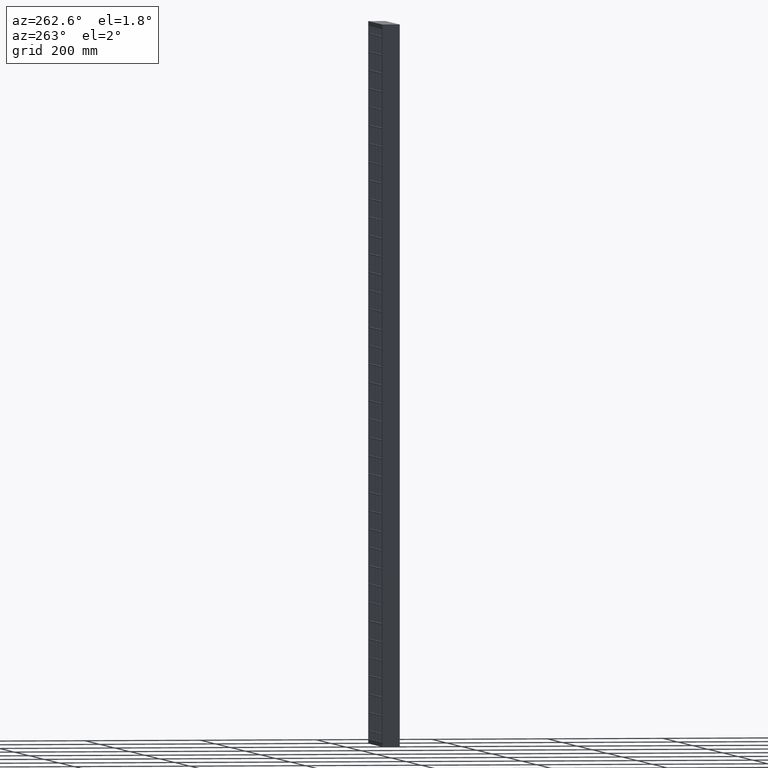
[diagram: clean part render]
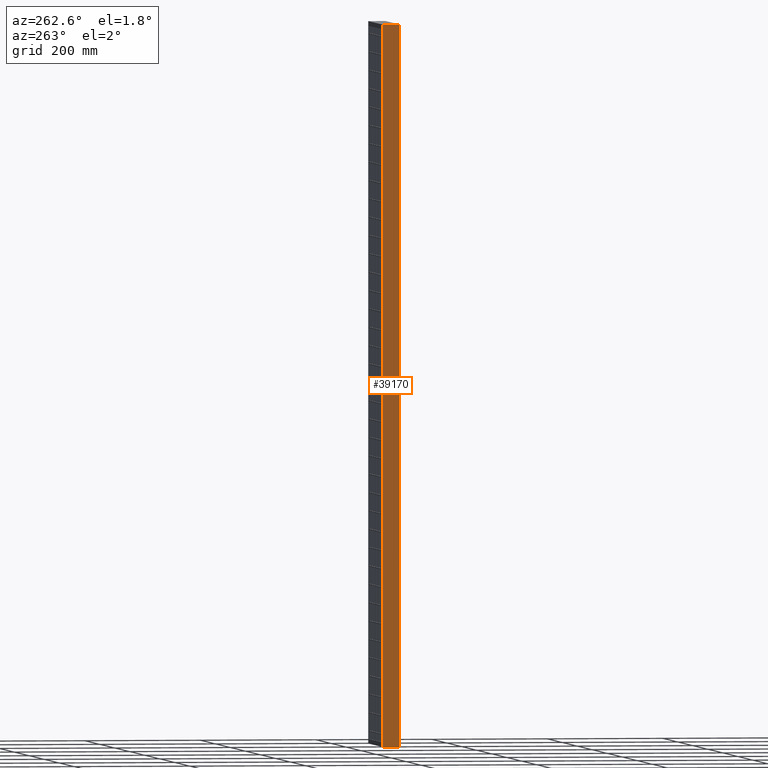
[diagram: same view with one face highlighted and labeled with its STEP entity id]
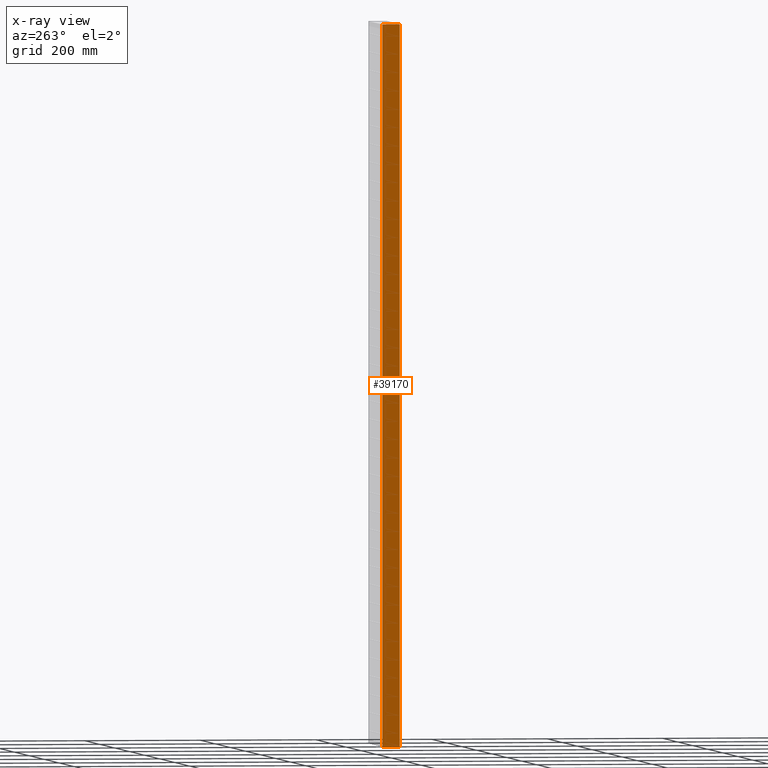
[diagram: x-ray of the same camera — body ghosted, the highlighted face saturated]
A machine part, auxiliary view. The second image highlights one B-rep face of the part: STEP entity #39170.
The next image is the same camera in x-ray: the body ghosted, the highlighted face saturated — about 0% of this face is hidden behind the body in this view.
In plain terms, the highlighted planar face has unit normal (-1, -0, 0).
Its self-contained STEP definition (entity closure, byte-faithful):
#1014 = CARTESIAN_POINT ( 'NONE',  ( -1.836970198721028000E-015, 5.000000000000000900, 0.0000000000000000000 ) ) ;
#3913 = ORIENTED_EDGE ( 'NONE', *, *, #16910, .T. ) ;
#5999 = EDGE_CURVE ( 'NONE', #30018, #16645, #14921, .T. ) ;
#7095 = CARTESIAN_POINT ( 'NONE',  ( 4.286263797015736500E-015, -15.00000000000000000, -1240.000000000000000 ) ) ;
#10417 = DIRECTION ( 'NONE',  ( -0.0000000000000000000, -0.0000000000000000000, 1.000000000000000000 ) ) ;
#10449 = VECTOR ( 'NONE', #27040, 1000.000000000000000 ) ;
#10769 = CARTESIAN_POINT ( 'NONE',  ( -4.898587196589410700E-015, 15.00000000000000000, -1302.096698785040000 ) ) ;
#11310 = VERTEX_POINT ( 'NONE', #7095 ) ;
#11696 = EDGE_LOOP ( 'NONE', ( #22348, #17761, #16681, #3913 ) ) ;
#13042 = VECTOR ( 'NONE', #10417, 1000.000000000000000 ) ;
#14198 = CARTESIAN_POINT ( 'NONE',  ( 8.326672684688658900E-014, 15.00000000000000000, -7.466180501988860100E-014 ) ) ;
#14779 = LINE ( 'NONE', #10769, #16288 ) ;
#14921 = B_SPLINE_CURVE_WITH_KNOTS ( 'NONE', 3,
 ( #40247, #20883, #1014, #14198 ),
 .UNSPECIFIED., .F., .F.,
 ( 4, 4 ),
 ( 0.0000000000000000000, 1.000000000000000000 ),
 .UNSPECIFIED. ) ;
#16288 = VECTOR ( 'NONE', #30668, 1000.000000000000000 ) ;
#16645 = VERTEX_POINT ( 'NONE', #34932 ) ;
#16681 = ORIENTED_EDGE ( 'NONE', *, *, #25524, .F. ) ;
#16682 = FACE_OUTER_BOUND ( 'NONE', #11696, .T. ) ;
#16910 = EDGE_CURVE ( 'NONE', #19767, #11310, #27752, .T. ) ;
#17161 = DIRECTION ( 'NONE',  ( 3.061616997868382600E-016, -1.000000000000000000, 0.0000000000000000000 ) ) ;
#17304 = DIRECTION ( 'NONE',  ( -1.000000000000000000, -3.061616997868382600E-016, 0.0000000000000000000 ) ) ;
#17761 = ORIENTED_EDGE ( 'NONE', *, *, #5999, .T. ) ;
#19516 = CARTESIAN_POINT ( 'NONE',  ( 4.286263797015736500E-015, -15.00000000000000000, -1302.096698785040000 ) ) ;
#19767 = VERTEX_POINT ( 'NONE', #32455 ) ;
#20146 = LINE ( 'NONE', #19516, #13042 ) ;
#20883 = CARTESIAN_POINT ( 'NONE',  ( 1.224646799147354400E-015, -5.000000000000000900, 0.0000000000000000000 ) ) ;
#21380 = AXIS2_PLACEMENT_3D ( 'NONE', #23705, #17304, #17161 ) ;
#22293 = EDGE_CURVE ( 'NONE', #11310, #30018, #20146, .T. ) ;
#22348 = ORIENTED_EDGE ( 'NONE', *, *, #22293, .T. ) ;
#23705 = CARTESIAN_POINT ( 'NONE',  ( -4.898587196589410700E-015, 15.00000000000000000, -1302.096698785040000 ) ) ;
#23776 = CARTESIAN_POINT ( 'NONE',  ( -4.898587196589417000E-015, 15.00000000000001800, -1240.000000000000000 ) ) ;
#25524 = EDGE_CURVE ( 'NONE', #19767, #16645, #14779, .T. ) ;
#27040 = DIRECTION ( 'NONE',  ( 3.061616997868382600E-016, -1.000000000000000000, 3.061616997868382600E-016 ) ) ;
#27752 = LINE ( 'NONE', #23776, #10449 ) ;
#30018 = VERTEX_POINT ( 'NONE', #30058 ) ;
#30058 = CARTESIAN_POINT ( 'NONE',  ( 2.143131898507868200E-015, -15.00000000000000000, 0.0000000000000000000 ) ) ;
#30668 = DIRECTION ( 'NONE',  ( -0.0000000000000000000, -0.0000000000000000000, 1.000000000000000000 ) ) ;
#32455 = CARTESIAN_POINT ( 'NONE',  ( -4.898587196589410700E-015, 15.00000000000000000, -1240.000000000000000 ) ) ;
#34932 = CARTESIAN_POINT ( 'NONE',  ( 8.326672684688658900E-014, 15.00000000000000000, -7.466180501988860100E-014 ) ) ;
#36695 = PLANE ( 'NONE',  #21380 ) ;
#39170 = ADVANCED_FACE ( 'NONE', ( #16682 ), #36695, .T. ) ;
#40247 = CARTESIAN_POINT ( 'NONE',  ( 2.143131898507868200E-015, -15.00000000000000000, 0.0000000000000000000 ) ) ;